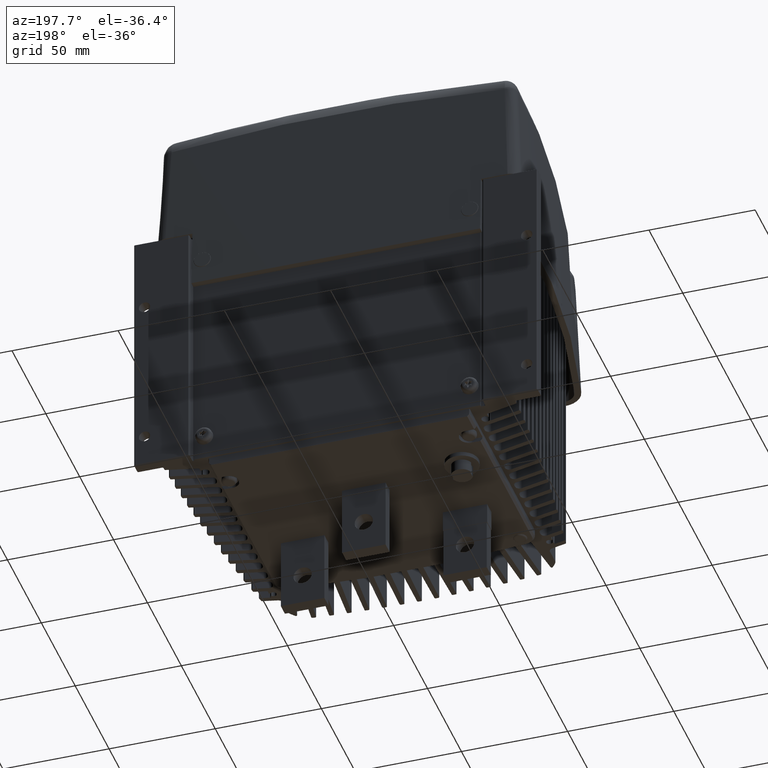
[diagram: clean part render]
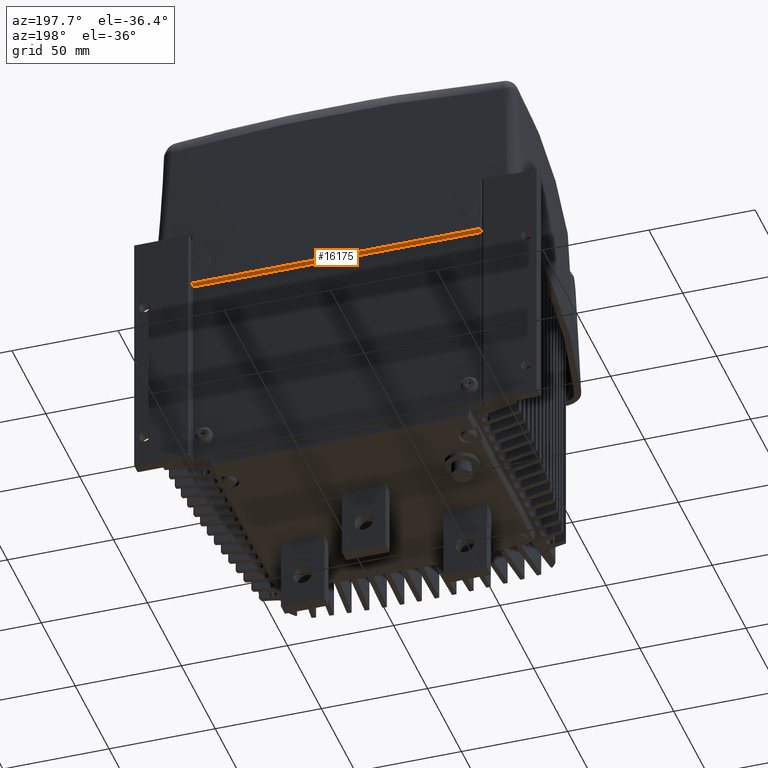
[diagram: same view with one face highlighted and labeled with its STEP entity id]
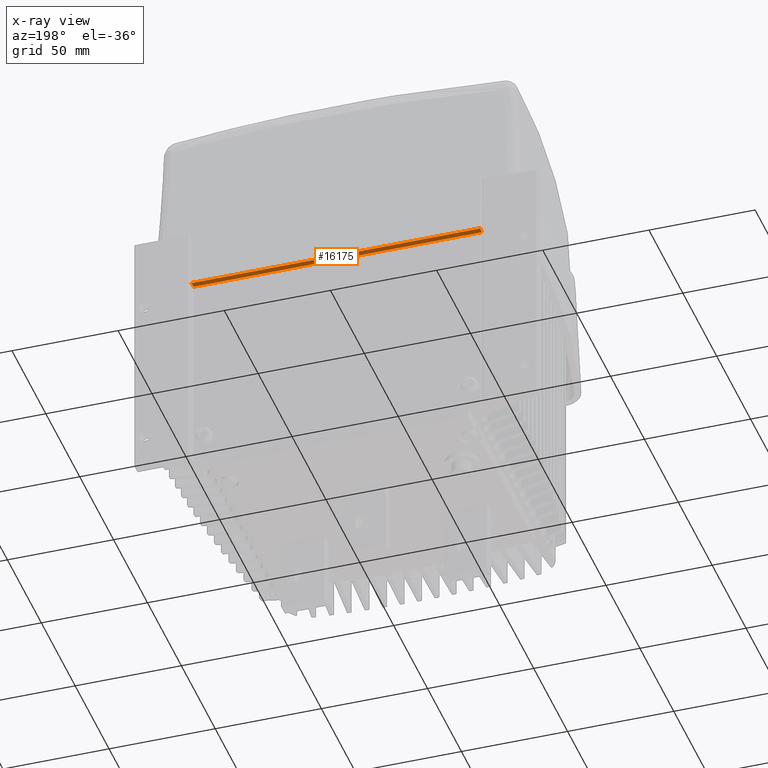
[diagram: x-ray of the same camera — body ghosted, the highlighted face saturated]
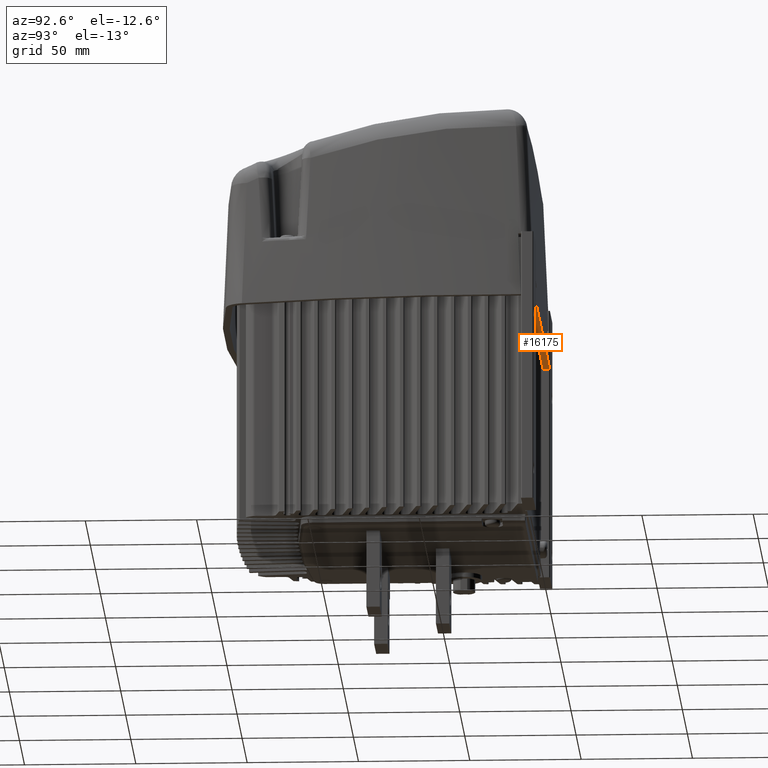
[diagram: same view with one face highlighted and labeled with its STEP entity id]
A machine part, auxiliary view. The second image highlights one B-rep face of the part: STEP entity #16175.
The next image is the same camera in x-ray: the body ghosted, the highlighted face saturated — about 0% of this face is hidden behind the body in this view.
A second angle (auxiliary view) of the same face is appended — the face is thin or edge-on in the first view.
In plain terms, the highlighted planar face has unit normal (0, 0, 1).
Its self-contained STEP definition (entity closure, byte-faithful):
#1401=LINE('',#22349,#2504);
#2365=LINE('',#29536,#3468);
#2466=LINE('',#31720,#3569);
#2467=LINE('',#31721,#3570);
#2504=VECTOR('',#17948,135.898712793615);
#3468=VECTOR('',#21644,135.898712793615);
#3569=VECTOR('',#22057,3.00285805549002);
#3570=VECTOR('',#22058,3.00285805548999);
#3898=PLANE('',#17790);
#4793=FACE_OUTER_BOUND('',#5712,.T.);
#5712=EDGE_LOOP('',(#14731,#14732,#14733,#14734));
#6696=VERTEX_POINT('',#22346);
#6697=VERTEX_POINT('',#22348);
#8009=VERTEX_POINT('',#29533);
#8010=VERTEX_POINT('',#29535);
#8200=EDGE_CURVE('',#6697,#6696,#1401,.T.);
#10129=EDGE_CURVE('',#8009,#8010,#2365,.T.);
#10374=EDGE_CURVE('',#6696,#8010,#2466,.T.);
#10375=EDGE_CURVE('',#8009,#6697,#2467,.T.);
#14731=ORIENTED_EDGE('',*,*,#10374,.T.);
#14732=ORIENTED_EDGE('',*,*,#10129,.F.);
#14733=ORIENTED_EDGE('',*,*,#10375,.T.);
#14734=ORIENTED_EDGE('',*,*,#8200,.T.);
#16175=ADVANCED_FACE('',(#4793),#3898,.F.);
#17790=AXIS2_PLACEMENT_3D('',#31719,#22055,#22056);
#17948=DIRECTION('',(-1.,-4.97482594618169E-15,4.3285700244837E-17));
#21644=DIRECTION('',(-1.,-4.97482594618169E-15,4.3285700244837E-17));
#22055=DIRECTION('center_axis',(4.3285700244837E-17,3.4694469519537E-18,
1.));
#22056=DIRECTION('ref_axis',(1.,0.,0.));
#22057=DIRECTION('',(-8.63676610639058E-15,1.,-3.46944695195333E-18));
#22058=DIRECTION('',(8.63676610639058E-15,-1.,3.46944695195333E-18));
#22346=CARTESIAN_POINT('',(29.3300636296713,141.057362820671,134.521374530365));
#22348=CARTESIAN_POINT('',(165.228776423286,141.057362820672,134.521374530365));
#22349=CARTESIAN_POINT('',(54.0294200264786,141.057362820672,134.521374530365));
#29533=CARTESIAN_POINT('',(165.228776423286,144.060220876162,134.521374530365));
#29535=CARTESIAN_POINT('',(29.3300636296712,144.060220876161,134.521374530365));
#29536=CARTESIAN_POINT('',(183.779420026478,144.060220876162,134.521374530365));
#31719=CARTESIAN_POINT('Origin',(97.2794200264789,77.3115325460727,134.521374530365));
#31720=CARTESIAN_POINT('',(29.3300636296715,110.064932923097,134.521374530365));
#31721=CARTESIAN_POINT('',(165.228776423286,111.068178832501,134.521374530365));